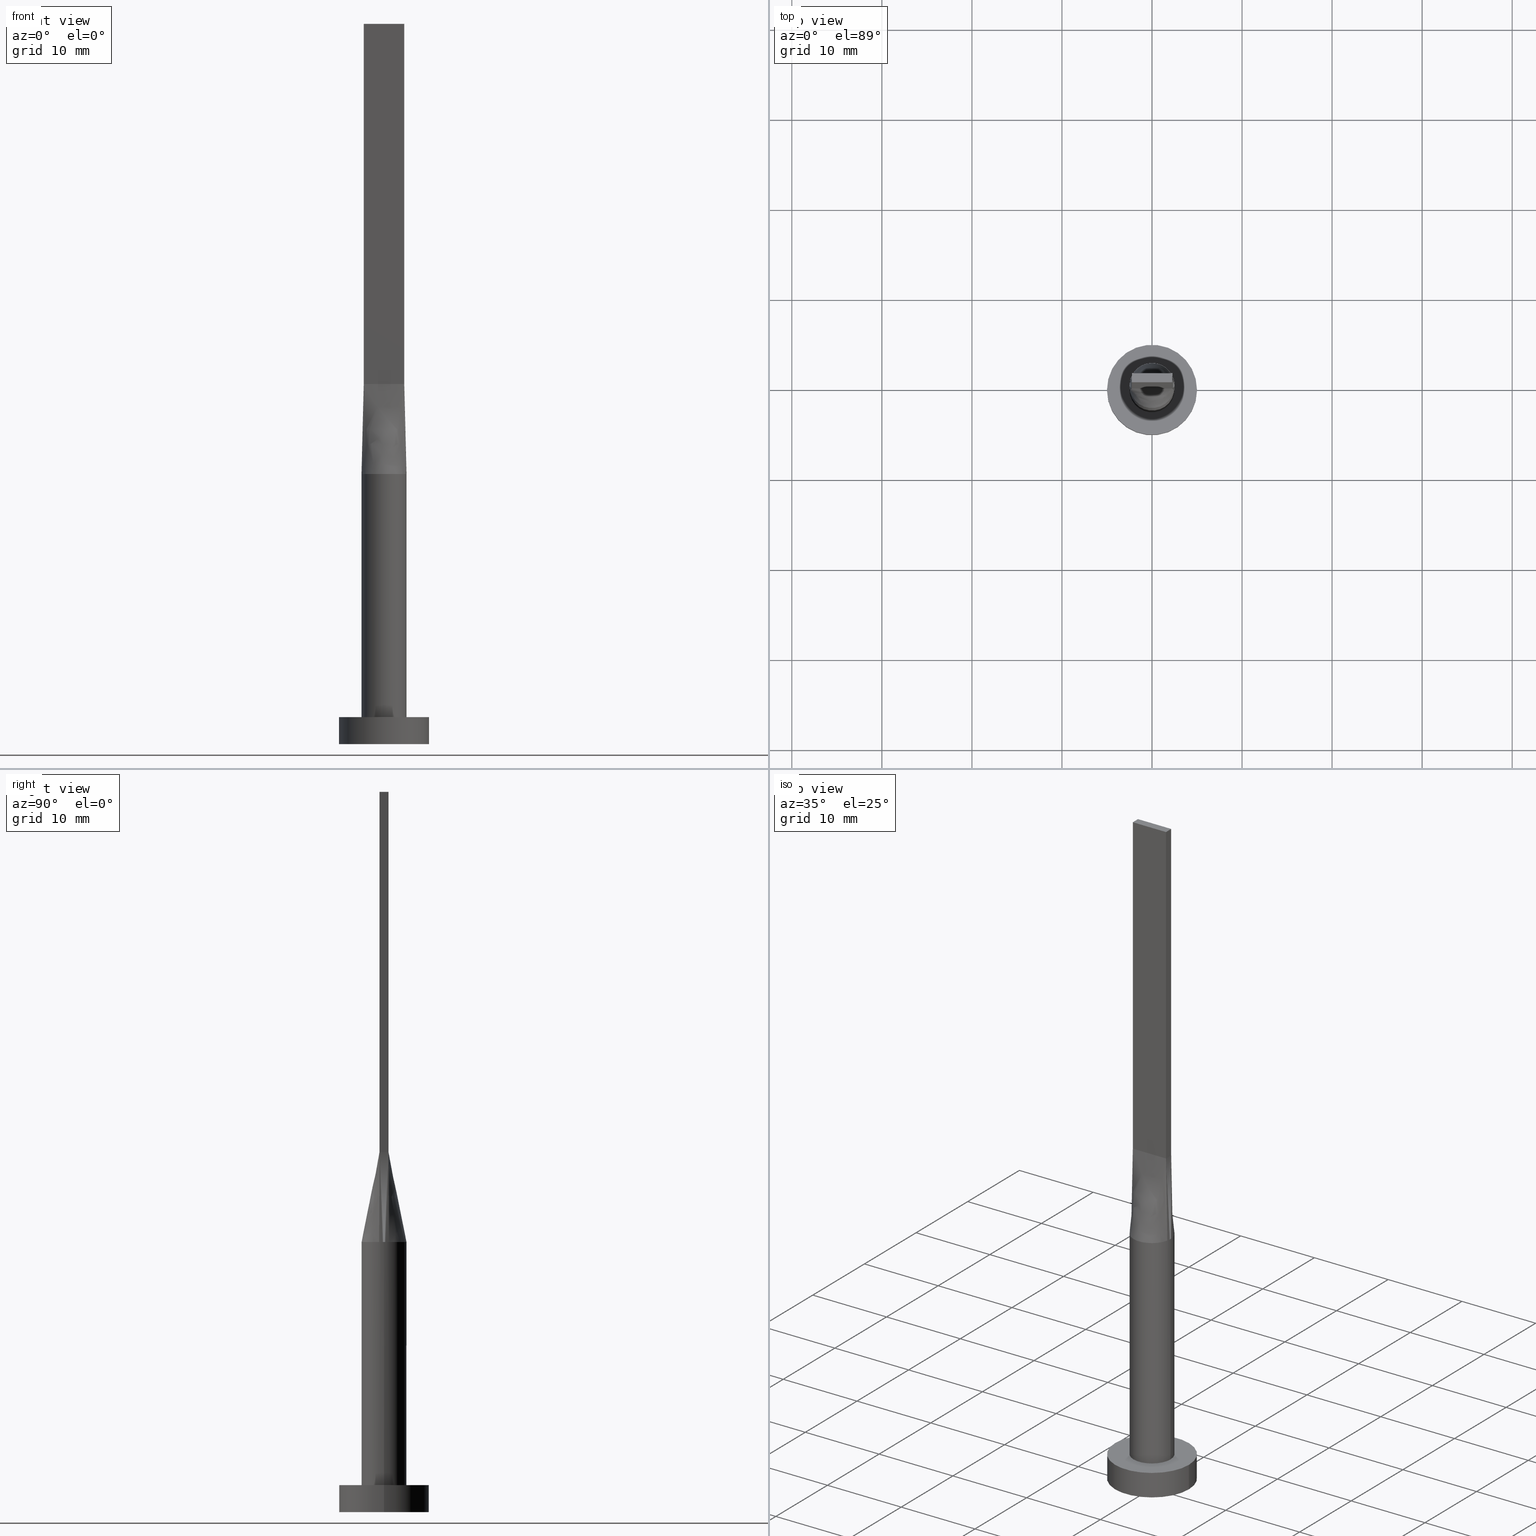
[diagram: canonical four-view strip — front | top / right | iso, engineering-drawing reading convention]
A machine part, canonical four-view strip (front | top / right | iso — engineering-drawing reading convention). The complete STEP part file that produces these views, byte-faithful:
ISO-10303-21;
HEADER;
FILE_DESCRIPTION (( 'STEP AP203' ),
    '1' );
FILE_NAME ('97d0.STEP',
    '2023-02-13T11:23:31',
    ( '' ),
    ( '' ),
    'SwSTEP 2.0',
    'SolidWorks 2019',
    '' );
FILE_SCHEMA (( 'CONFIG_CONTROL_DESIGN' ));
ENDSEC;

DATA;
#1 = LINE ( 'NONE', #450, #43 ) ;
#2 = FACE_OUTER_BOUND ( 'NONE', #85, .T. ) ;
#3 = CIRCLE ( 'NONE', #340, 2.500000000000000000 ) ;
#4 = CARTESIAN_POINT ( 'NONE',  ( -0.6674771052374470770, 2.430579781493059421, 29.99999999999998934 ) ) ;
#5 = VERTEX_POINT ( 'NONE', #221 ) ;
#6 = CARTESIAN_POINT ( 'NONE',  ( 0.000000000000000000, 0.000000000000000000, 30.00000000000000000 ) ) ;
#7 = CARTESIAN_POINT ( 'NONE',  ( 2.250000000000000000, -0.4999999999999997780, 80.00000000000000000 ) ) ;
#8 = DIRECTION ( 'NONE',  ( 1.000000000000000000, 0.000000000000000000, 0.000000000000000000 ) ) ;
#9 = EDGE_CURVE ( 'NONE', #513, #28, #87, .T. ) ;
#10 = CARTESIAN_POINT ( 'NONE',  ( 1.935644909179608186, 1.608159499248285051, 29.99999999999999645 ) ) ;
#11 = CARTESIAN_POINT ( 'NONE',  ( 2.440706242928429415, -0.5423794613208688942, 30.00000000000000000 ) ) ;
#12 = LINE ( 'NONE', #379, #454 ) ;
#13 = B_SPLINE_SURFACE_WITH_KNOTS ( 'NONE', 3, 1, ( 
 ( #267, #364 ),
 ( #280, #42 ),
 ( #459, #553 ),
 ( #53, #557 ),
 ( #10, #230 ),
 ( #374, #182 ),
 ( #236, #334 ),
 ( #335, #141 ),
 ( #225, #421 ),
 ( #48, #326 ),
 ( #516, #551 ),
 ( #414, #463 ),
 ( #189, #424 ),
 ( #93, #470 ),
 ( #180, #372 ),
 ( #137, #15 ),
 ( #418, #86 ),
 ( #550, #57 ) ),
 .UNSPECIFIED., .F., .F., .F.,
 ( 4, 2, 2, 2, 2, 2, 2, 2, 4 ),
 ( 2, 2 ),
 ( 0.000000000000000000, 0.1249999999999999722, 0.2500000000000000000, 0.3750000000000000000, 0.5000000000000001110, 0.6250000000000001110, 0.7500000000000000000, 0.8750000000000000000, 1.000000000000000000 ),
 ( 0.000000000000000000, 1.000000000000000000 ),
 .UNSPECIFIED. ) ;
#14 = CIRCLE ( 'NONE', #331, 2.500000000000000000 ) ;
#15 = CARTESIAN_POINT ( 'NONE',  ( -1.875000000000003775, 0.5000000000000002220, 39.99999999999999289 ) ) ;
#16 = PERSON ( 'NEUR�EN�', 'NEUR�EN�', 'NEUR�EN�', ('NEUR�EN�'), ('NEUR�EN�'), ('NEUR�EN�') ) ;
#17 = CARTESIAN_POINT ( 'NONE',  ( 2.479683336734391563, 0.3658555563113463638, 30.00000000000000000 ) ) ;
#18 = DIRECTION ( 'NONE',  ( 1.000000000000000000, 0.000000000000000000, -0.000000000000000000 ) ) ;
#19 = DIRECTION ( 'NONE',  ( -1.000000000000000000, -0.000000000000000000, -0.000000000000000000 ) ) ;
#20 = CARTESIAN_POINT ( 'NONE',  ( -0.9375000000000006661, -0.4999999999999995559, 39.99999999999999289 ) ) ;
#21 = CARTESIAN_POINT ( 'NONE',  ( -2.345233825229941171, -0.5211630722733197052, 35.00000000000000000 ) ) ;
#22 = EDGE_LOOP ( 'NONE', ( #403, #395, #59, #483 ) ) ;
#23 = CARTESIAN_POINT ( 'NONE',  ( 2.093723281432890548, -1.388001797188530340, 29.99999999999999645 ) ) ;
#24 = FACE_OUTER_BOUND ( 'NONE', #306, .T. ) ;
#25 = ORIENTED_EDGE ( 'NONE', *, *, #519, .F. ) ;
#26 = DIRECTION ( 'NONE',  ( -0.000000000000000000, -0.000000000000000000, -1.000000000000000000 ) ) ;
#27 = CARTESIAN_POINT ( 'NONE',  ( -2.250000000000000000, -0.4999999999999994449, 80.00000000000000000 ) ) ;
#28 = VERTEX_POINT ( 'NONE', #508 ) ;
#29 = CARTESIAN_POINT ( 'NONE',  ( 0.000000000000000000, 0.000000000000000000, 30.00000000000000000 ) ) ;
#30 = AXIS2_PLACEMENT_3D ( 'NONE', #401, #465, #35 ) ;
#31 = PLANE ( 'NONE',  #452 ) ;
#32 = ADVANCED_FACE ( 'NONE', ( #365 ), #270, .T. ) ;
#33 = ORIENTED_EDGE ( 'NONE', *, *, #170, .T. ) ;
#34 = EDGE_LOOP ( 'NONE', ( #119, #497, #151, #91 ) ) ;
#35 = DIRECTION ( 'NONE',  ( -1.000000000000000000, 0.000000000000000000, 0.000000000000000000 ) ) ;
#36 = DIRECTION ( 'NONE',  ( 7.228014483236697048E-17, 1.000000000000000000, -0.000000000000000000 ) ) ;
#37 = ADVANCED_FACE ( 'NONE', ( #265 ), #411, .F. ) ;
#38 = DIRECTION ( 'NONE',  ( 1.000000000000000000, 0.000000000000000000, 0.000000000000000000 ) ) ;
#39 = DIRECTION ( 'NONE',  ( -1.000000000000000000, -4.336808689942017736E-16, 0.000000000000000000 ) ) ;
#40 = ORIENTED_EDGE ( 'NONE', *, *, #373, .T. ) ;
#41 =( NAMED_UNIT ( * ) PLANE_ANGLE_UNIT ( ) SI_UNIT ( $, .RADIAN. ) );
#42 = CARTESIAN_POINT ( 'NONE',  ( 2.062499999999996891, 0.5000000000000002220, 39.99999999999999289 ) ) ;
#43 = VECTOR ( 'NONE', #576, 1000.000000000000000 ) ;
#44 = CIRCLE ( 'NONE', #285, 2.500000000000000000 ) ;
#45 = ADVANCED_FACE ( 'NONE', ( #409 ), #163, .F. ) ;
#46 = PERSON_AND_ORGANIZATION ( #16, #124 ) ;
#47 = APPLICATION_CONTEXT ( 'configuration controlled 3d designs of mechanical parts and assemblies' ) ;
#48 = CARTESIAN_POINT ( 'NONE',  ( -0.3342381693191151526, 2.499999999999999556, 30.00000000000000355 ) ) ;
#49 = CARTESIAN_POINT ( 'NONE',  ( -2.249999999999999556, 0.1666666666666672403, 39.99999999999999289 ) ) ;
#50 = COORDINATED_UNIVERSAL_TIME_OFFSET ( 1, 0, .AHEAD. ) ;
#51 = CARTESIAN_POINT ( 'NONE',  ( 2.499291179871646396, 0.1829277781556730154, 30.00000000000000000 ) ) ;
#52 = EDGE_CURVE ( 'NONE', #427, #5, #295, .T. ) ;
#53 = CARTESIAN_POINT ( 'NONE',  ( 2.093723281432890104, 1.388001797188529007, 29.99999999999998934 ) ) ;
#54 = ORIENTED_EDGE ( 'NONE', *, *, #532, .F. ) ;
#55 = DESIGN_CONTEXT ( 'detailed design', #47, 'design' ) ;
#56 = PERSON_AND_ORGANIZATION ( #16, #124 ) ;
#57 = CARTESIAN_POINT ( 'NONE',  ( -2.249999999999999556, 0.5000000000000002220, 40.00000000000000000 ) ) ;
#58 = CARTESIAN_POINT ( 'NONE',  ( 0.9374999999999997780, -0.4999999999999995559, 39.99999999999999289 ) ) ;
#59 = ORIENTED_EDGE ( 'NONE', *, *, #385, .F. ) ;
#60 = CARTESIAN_POINT ( 'NONE',  ( -1.935644909179609297, -1.608159499248284829, 30.00000000000000711 ) ) ;
#61 = CARTESIAN_POINT ( 'NONE',  ( 2.500000000000000000, 3.061616997868383141E-16, 3.000000000000000000 ) ) ;
#62 = EDGE_LOOP ( 'NONE', ( #287, #294 ) ) ;
#63 = PERSON_AND_ORGANIZATION_ROLE ( 'classification_officer' ) ;
#64 = VECTOR ( 'NONE', #238, 1000.000000000000000 ) ;
#65 = DIRECTION ( 'NONE',  ( 1.000000000000000000, 0.000000000000000000, 0.000000000000000000 ) ) ;
#66 = DIRECTION ( 'NONE',  ( 0.01904314058352523514, -0.004231809018561030755, 0.9998097071888962795 ) ) ;
#67 = ORIENTED_EDGE ( 'NONE', *, *, #469, .T. ) ;
#68 = CARTESIAN_POINT ( 'NONE',  ( -1.260416918790969509, -2.182794756967427752, 29.99999999999999645 ) ) ;
#69 = EDGE_LOOP ( 'NONE', ( #534, #321, #500, #344, #439 ) ) ;
#70 = CARTESIAN_POINT ( 'NONE',  ( 0.3749999999999998890, -0.4999999999999995559, 39.99999999999999289 ) ) ;
#71 = ADVANCED_FACE ( 'NONE', ( #546 ), #316, .F. ) ;
#72 = ORIENTED_EDGE ( 'NONE', *, *, #526, .F. ) ;
#73 = VECTOR ( 'NONE', #482, 1000.000000000000000 ) ;
#74 = DATE_TIME_ROLE ( 'creation_date' ) ;
#75 = LINE ( 'NONE', #441, #224 ) ;
#76 = VERTEX_POINT ( 'NONE', #168 ) ;
#77 = DATE_AND_TIME ( #123, #341 ) ;
#78 = CARTESIAN_POINT ( 'NONE',  ( 1.935644909179608186, 1.608159499248285051, 29.99999999999999645 ) ) ;
#79 = DIRECTION ( 'NONE',  ( -0.000000000000000000, -0.000000000000000000, -1.000000000000000000 ) ) ;
#80 = CARTESIAN_POINT ( 'NONE',  ( 0.000000000000000000, 0.000000000000000000, 30.00000000000000000 ) ) ;
#81 = DIRECTION ( 'NONE',  ( 4.336808689942017736E-16, -1.000000000000000000, 0.000000000000000000 ) ) ;
#82 = ADVANCED_FACE ( 'NONE', ( #503, #2 ), #172, .T. ) ;
#83 = DIRECTION ( 'NONE',  ( -1.000000000000000000, 0.000000000000000000, 0.000000000000000000 ) ) ;
#84 = CARTESIAN_POINT ( 'NONE',  ( -1.935644909179609297, 1.608159499248285718, 30.00000000000001066 ) ) ;
#85 = EDGE_LOOP ( 'NONE', ( #203, #162 ) ) ;
#86 = CARTESIAN_POINT ( 'NONE',  ( -2.062500000000001776, 0.5000000000000002220, 39.99999999999999289 ) ) ;
#87 = LINE ( 'NONE', #323, #222 ) ;
#88 = DIRECTION ( 'NONE',  ( -0.000000000000000000, -0.000000000000000000, -1.000000000000000000 ) ) ;
#89 = CIRCLE ( 'NONE', #432, 5.000000000000000000 ) ;
#90 = CARTESIAN_POINT ( 'NONE',  ( 2.249999999999999556, 0.5000000000000002220, 80.00000000000000000 ) ) ;
#91 = ORIENTED_EDGE ( 'NONE', *, *, #363, .T. ) ;
#92 = DIRECTION ( 'NONE',  ( -0.000000000000000000, -0.000000000000000000, -1.000000000000000000 ) ) ;
#93 = CARTESIAN_POINT ( 'NONE',  ( -1.935644909179609297, 1.608159499248285718, 30.00000000000001066 ) ) ;
#94 = CARTESIAN_POINT ( 'NONE',  ( -2.479683336734391563, 0.3658555563113465858, 30.00000000000000000 ) ) ;
#95 = PERSON_AND_ORGANIZATION ( #16, #124 ) ;
#96 = CARTESIAN_POINT ( 'NONE',  ( 2.250000000000000000, -0.4999999999999997780, 40.00000000000000000 ) ) ;
#97 = FACE_OUTER_BOUND ( 'NONE', #34, .T. ) ;
#98 = VECTOR ( 'NONE', #356, 1000.000000000000000 ) ;
#99 = CARTESIAN_POINT ( 'NONE',  ( -2.440688158044365785, -0.5423755258804862089, 30.00000000000000000 ) ) ;
#100 = ORIENTED_EDGE ( 'NONE', *, *, #526, .T. ) ;
#101 = CARTESIAN_POINT ( 'NONE',  ( 0.6674771052374466329, -2.430579781493059865, 29.99999999999999289 ) ) ;
#102 = EDGE_CURVE ( 'NONE', #564, #260, #336, .T. ) ;
#103 = CARTESIAN_POINT ( 'NONE',  ( 2.345233825229940727, -0.5211630722733201493, 35.00000000000000000 ) ) ;
#104 = CARTESIAN_POINT ( 'NONE',  ( -1.500000000000000444, -0.4999999999999995559, 39.99999999999999289 ) ) ;
#105 = FACE_OUTER_BOUND ( 'NONE', #541, .T. ) ;
#106 = CC_DESIGN_PERSON_AND_ORGANIZATION_ASSIGNMENT ( #95, #63, ( #299 ) ) ;
#107 = ORIENTED_EDGE ( 'NONE', *, *, #250, .F. ) ;
#108 = APPROVAL_ROLE ( '' ) ;
#109 = DIRECTION ( 'NONE',  ( -4.336808689942019708E-16, -1.000000000000000000, 0.000000000000000000 ) ) ;
#110 = CARTESIAN_POINT ( 'NONE',  ( 2.249999999999999556, 0.5000000000000002220, 40.00000000000000000 ) ) ;
#111 = VERTEX_POINT ( 'NONE', #99 ) ;
#112 = CC_DESIGN_APPROVAL ( #232, ( #361 ) ) ;
#113 = DIRECTION ( 'NONE',  ( -0.000000000000000000, -0.000000000000000000, -1.000000000000000000 ) ) ;
#114 = DIRECTION ( 'NONE',  ( 0.000000000000000000, -1.000000000000000000, 0.000000000000000000 ) ) ;
#115 = VERTEX_POINT ( 'NONE', #7 ) ;
#116 = EDGE_CURVE ( 'NONE', #505, #446, #243, .T. ) ;
#117 = CARTESIAN_POINT ( 'NONE',  ( 1.312499999999999778, -0.4999999999999996669, 39.99999999999999289 ) ) ;
#118 = CARTESIAN_POINT ( 'NONE',  ( 2.345233825229940283, 0.5211630722733202603, 35.00000000000000000 ) ) ;
#119 = ORIENTED_EDGE ( 'NONE', *, *, #126, .T. ) ;
#120 = PERSON_AND_ORGANIZATION ( #16, #124 ) ;
#121 = ORIENTED_EDGE ( 'NONE', *, *, #309, .T. ) ;
#122 = AXIS2_PLACEMENT_3D ( 'NONE', #297, #398, #493 ) ;
#123 = CALENDAR_DATE ( 2023, 13, 2 ) ;
#124 = ORGANIZATION ( 'NEUR�EN�', 'NEUR�EN�', '' ) ;
#125 = CARTESIAN_POINT ( 'NONE',  ( 2.440676307083422980, 0.5423728264510006003, 30.00000000000000000 ) ) ;
#126 = EDGE_CURVE ( 'NONE', #136, #513, #190, .T. ) ;
#127 = DIRECTION ( 'NONE',  ( 1.000000000000000000, 0.000000000000000000, 0.000000000000000000 ) ) ;
#128 = CARTESIAN_POINT ( 'NONE',  ( -1.519400572660313253, 2.006070808634367264, 30.00000000000001421 ) ) ;
#129 = ADVANCED_FACE ( 'NONE', ( #467 ), #210, .T. ) ;
#130 = ORIENTED_EDGE ( 'NONE', *, *, #469, .F. ) ;
#131 = AXIS2_PLACEMENT_3D ( 'NONE', #220, #36, #176 ) ;
#132 = DIRECTION ( 'NONE',  ( -0.000000000000000000, -0.000000000000000000, -1.000000000000000000 ) ) ;
#133 = VECTOR ( 'NONE', #358, 1000.000000000000000 ) ;
#134 = CIRCLE ( 'NONE', #518, 5.000000000000000000 ) ;
#135 = EDGE_LOOP ( 'NONE', ( #33, #130, #391, #159 ) ) ;
#136 = VERTEX_POINT ( 'NONE', #573 ) ;
#137 = CARTESIAN_POINT ( 'NONE',  ( -2.323660390030918510, 0.9543733860570832173, 30.00000000000000000 ) ) ;
#138 = CARTESIAN_POINT ( 'NONE',  ( 2.440467650459881899, -0.5423261445466410757, 30.00000000000000000 ) ) ;
#139 = VECTOR ( 'NONE', #109, 1000.000000000000000 ) ;
#140 = CARTESIAN_POINT ( 'NONE',  ( -2.499291179871646840, -0.1829277781556729043, 30.00000000000000000 ) ) ;
#141 = CARTESIAN_POINT ( 'NONE',  ( 0.3749999999999862332, 0.5000000000000002220, 39.99999999999999289 ) ) ;
#142 = CARTESIAN_POINT ( 'NONE',  ( -2.250000000000000000, -0.3333333333333325932, 39.99999999999999289 ) ) ;
#143 = CARTESIAN_POINT ( 'NONE',  ( 2.249999999999999556, 0.1666666666666664354, 39.99999999999999289 ) ) ;
#144 = COORDINATED_UNIVERSAL_TIME_OFFSET ( 1, 0, .AHEAD. ) ;
#145 = CARTESIAN_POINT ( 'NONE',  ( 0.000000000000000000, 0.000000000000000000, 80.00000000000000000 ) ) ;
#146 = DIRECTION ( 'NONE',  ( 1.000000000000000000, 0.000000000000000000, -0.000000000000000000 ) ) ;
#147 = CIRCLE ( 'NONE', #122, 5.000000000000000000 ) ;
#148 = LOCAL_TIME ( 12, 23, 31.00000000000000000, #435 ) ;
#149 = CARTESIAN_POINT ( 'NONE',  ( -2.062500000000000000, -0.4999999999999995559, 40.00000000000000000 ) ) ;
#150 = CARTESIAN_POINT ( 'NONE',  ( 0.000000000000000000, 0.000000000000000000, 0.000000000000000000 ) ) ;
#151 = ORIENTED_EDGE ( 'NONE', *, *, #289, .T. ) ;
#152 = CARTESIAN_POINT ( 'NONE',  ( 1.875000000000000000, -0.4999999999999997780, 39.99999999999999289 ) ) ;
#153 = LINE ( 'NONE', #487, #559 ) ;
#154 = VERTEX_POINT ( 'NONE', #61 ) ;
#155 = CARTESIAN_POINT ( 'NONE',  ( 0.000000000000000000, 0.000000000000000000, 0.000000000000000000 ) ) ;
#156 = ORIENTED_EDGE ( 'NONE', *, *, #571, .F. ) ;
#157 = CARTESIAN_POINT ( 'NONE',  ( 1.519400572660313031, -2.006070808634367264, 30.00000000000000711 ) ) ;
#158 = DIRECTION ( 'NONE',  ( 1.000000000000000000, 0.000000000000000000, 0.000000000000000000 ) ) ;
#159 = ORIENTED_EDGE ( 'NONE', *, *, #366, .T. ) ;
#160 = CARTESIAN_POINT ( 'NONE',  ( 2.323660390030917178, -0.9543733860570838834, 30.00000000000001066 ) ) ;
#161 = LINE ( 'NONE', #206, #283 ) ;
#162 = ORIENTED_EDGE ( 'NONE', *, *, #239, .T. ) ;
#163 = PLANE ( 'NONE',  #131 ) ;
#164 = VECTOR ( 'NONE', #455, 1000.000000000000000 ) ;
#165 = LINE ( 'NONE', #575, #375 ) ;
#166 = CC_DESIGN_DATE_AND_TIME_ASSIGNMENT ( #480, #345, ( #299 ) ) ;
#167 = CARTESIAN_POINT ( 'NONE',  ( -2.093723281432891437, 1.388001797188529451, 30.00000000000000000 ) ) ;
#168 = CARTESIAN_POINT ( 'NONE',  ( -5.000000000000000000, 0.000000000000000000, 0.000000000000000000 ) ) ;
#169 = FACE_OUTER_BOUND ( 'NONE', #378, .T. ) ;
#170 = EDGE_CURVE ( 'NONE', #260, #200, #161, .T. ) ;
#171 = CARTESIAN_POINT ( 'NONE',  ( 0.000000000000000000, 0.000000000000000000, 0.000000000000000000 ) ) ;
#172 = PLANE ( 'NONE',  #429 ) ;
#173 = AXIS2_PLACEMENT_3D ( 'NONE', #415, #39, #81 ) ;
#174 = EDGE_CURVE ( 'NONE', #446, #200, #394, .T. ) ;
#175 = CIRCLE ( 'NONE', #396, 2.500000000000000000 ) ;
#176 = DIRECTION ( 'NONE',  ( -1.000000000000000000, 7.228014483236697048E-17, 0.000000000000000000 ) ) ;
#177 = DATE_AND_TIME ( #369, #195 ) ;
#178 = DIRECTION ( 'NONE',  ( 0.000000000000000000, 0.000000000000000000, 1.000000000000000000 ) ) ;
#179 = PERSON_AND_ORGANIZATION_ROLE ( 'creator' ) ;
#180 = CARTESIAN_POINT ( 'NONE',  ( -2.093723281432891437, 1.388001797188529451, 30.00000000000000000 ) ) ;
#181 = DIRECTION ( 'NONE',  ( -0.01904314058352514841, 0.004231809018561172135, 0.9998097071888962795 ) ) ;
#182 = CARTESIAN_POINT ( 'NONE',  ( 0.9374999999999878986, 0.5000000000000002220, 39.99999999999999289 ) ) ;
#183 = ADVANCED_FACE ( 'NONE', ( #293 ), #31, .F. ) ;
#184 = AXIS2_PLACEMENT_3D ( 'NONE', #145, #440, #18 ) ;
#185 = ADVANCED_FACE ( 'NONE', ( #105 ), #522, .T. ) ;
#186 = AXIS2_PLACEMENT_3D ( 'NONE', #223, #578, #8 ) ;
#187 = CARTESIAN_POINT ( 'NONE',  ( -5.000000000000000000, 0.000000000000000000, 3.000000000000000000 ) ) ;
#188 = PRODUCT_DEFINITION_SHAPE ( 'NONE', 'NONE',  #506 ) ;
#189 = CARTESIAN_POINT ( 'NONE',  ( -1.519400572660313253, 2.006070808634367264, 30.00000000000001421 ) ) ;
#190 = LINE ( 'NONE', #90, #545 ) ;
#191 = ORIENTED_EDGE ( 'NONE', *, *, #309, .F. ) ;
#192 = FACE_OUTER_BOUND ( 'NONE', #22, .T. ) ;
#193 = CARTESIAN_POINT ( 'NONE',  ( 5.000000000000000000, 6.123233995736766282E-16, 0.000000000000000000 ) ) ;
#194 = ORIENTED_EDGE ( 'NONE', *, *, #354, .T. ) ;
#195 = LOCAL_TIME ( 12, 23, 31.00000000000000000, #264 ) ;
#196 = CARTESIAN_POINT ( 'NONE',  ( -0.7500000000000006661, -0.4999999999999995559, 39.99999999999999289 ) ) ;
#197 = LINE ( 'NONE', #387, #204 ) ;
#198 = ORIENTED_EDGE ( 'NONE', *, *, #458, .F. ) ;
#199 = CARTESIAN_POINT ( 'NONE',  ( -2.440467650459882343, -0.5423261445466400765, 30.00000000000000000 ) ) ;
#200 = VERTEX_POINT ( 'NONE', #110 ) ;
#201 = CARTESIAN_POINT ( 'NONE',  ( 0.3342381693191144310, -2.500000000000000444, 30.00000000000000355 ) ) ;
#202 = VECTOR ( 'NONE', #181, 1000.000000000000000 ) ;
#203 = ORIENTED_EDGE ( 'NONE', *, *, #52, .T. ) ;
#204 = VECTOR ( 'NONE', #563, 1000.000000000000000 ) ;
#205 = FACE_OUTER_BOUND ( 'NONE', #442, .T. ) ;
#206 = CARTESIAN_POINT ( 'NONE',  ( 2.249999999999999556, 0.5000000000000002220, 40.00000000000000000 ) ) ;
#207 = ORIENTED_EDGE ( 'NONE', *, *, #532, .T. ) ;
#208 = EDGE_CURVE ( 'NONE', #154, #263, #3, .T. ) ;
#209 =( NAMED_UNIT ( * ) SI_UNIT ( $, .STERADIAN. ) SOLID_ANGLE_UNIT ( ) );
#210 = B_SPLINE_SURFACE_WITH_KNOTS ( 'NONE', 3, 1, ( 
 ( #475, #380 ),
 ( #94, #464 ),
 ( #376, #49 ),
 ( #140, #234 ),
 ( #554, #142 ),
 ( #426, #252 ) ),
 .UNSPECIFIED., .F., .F., .F.,
 ( 4, 2, 4 ),
 ( 2, 2 ),
 ( 0.000000000000000000, 0.5000000000000000000, 1.000000000000000000 ),
 ( 0.000000000000000000, 1.000000000000000000 ),
 .UNSPECIFIED. ) ;
#211 = ORIENTED_EDGE ( 'NONE', *, *, #422, .T. ) ;
#212 = CC_DESIGN_PERSON_AND_ORGANIZATION_ASSIGNMENT ( #56, #333, ( #361 ) ) ;
#213 = DIRECTION ( 'NONE',  ( 0.000000000000000000, 0.000000000000000000, 1.000000000000000000 ) ) ;
#214 = CARTESIAN_POINT ( 'NONE',  ( 0.3342381693191150416, 2.499999999999999556, 30.00000000000000355 ) ) ;
#215 = CLOSED_SHELL ( 'NONE', ( #544, #32, #496, #82, #183, #185, #509, #460, #129, #407, #324, #71, #45, #37, #474 ) ) ;
#216 = DIRECTION ( 'NONE',  ( 1.000000000000000000, -4.336808689942020201E-16, 0.000000000000000000 ) ) ;
#217 = DIRECTION ( 'NONE',  ( 0.000000000000000000, 0.000000000000000000, 1.000000000000000000 ) ) ;
#218 = CARTESIAN_POINT ( 'NONE',  ( -2.396350003401058082, 0.7408555563113466969, 30.00000000000000000 ) ) ;
#219 = EDGE_CURVE ( 'NONE', #357, #388, #486, .T. ) ;
#220 = CARTESIAN_POINT ( 'NONE',  ( -2.250000000000000000, -0.4999999999999994449, 80.00000000000000000 ) ) ;
#221 = CARTESIAN_POINT ( 'NONE',  ( 5.000000000000000000, 6.123233995736766282E-16, 3.000000000000000000 ) ) ;
#222 = VECTOR ( 'NONE', #227, 1000.000000000000000 ) ;
#223 = CARTESIAN_POINT ( 'NONE',  ( 0.000000000000000000, 0.000000000000000000, 0.000000000000000000 ) ) ;
#224 = VECTOR ( 'NONE', #19, 1000.000000000000000 ) ;
#225 = CARTESIAN_POINT ( 'NONE',  ( 0.3342381693191150416, 2.499999999999999556, 30.00000000000000355 ) ) ;
#226 = LOCAL_TIME ( 12, 23, 31.00000000000000000, #144 ) ;
#227 = DIRECTION ( 'NONE',  ( -0.000000000000000000, -0.000000000000000000, -1.000000000000000000 ) ) ;
#228 = APPROVAL_DATE_TIME ( #177, #232 ) ;
#229 = EDGE_CURVE ( 'NONE', #531, #111, #305, .T. ) ;
#230 = CARTESIAN_POINT ( 'NONE',  ( 1.312499999999990230, 0.5000000000000002220, 39.99999999999999289 ) ) ;
#231 = PERSON_AND_ORGANIZATION ( #16, #124 ) ;
#232 = APPROVAL ( #449, 'NEUR�EN�' ) ;
#233 = CARTESIAN_POINT ( 'NONE',  ( 2.440467650459881899, 0.5423261445466404096, 30.00000000000000000 ) ) ;
#234 = CARTESIAN_POINT ( 'NONE',  ( -2.249999999999999556, -0.1666666666666659358, 39.99999999999999289 ) ) ;
#235 = SHAPE_DEFINITION_REPRESENTATION ( #188, #255 ) ;
#236 = CARTESIAN_POINT ( 'NONE',  ( 1.260416918790968843, 2.182794756967427752, 29.99999999999999645 ) ) ;
#237 = ORIENTED_EDGE ( 'NONE', *, *, #537, .T. ) ;
#238 = DIRECTION ( 'NONE',  ( -0.000000000000000000, -0.000000000000000000, -1.000000000000000000 ) ) ;
#239 = EDGE_CURVE ( 'NONE', #5, #427, #147, .T. ) ;
#240 = PRODUCT ( '97d0', '97d0', '', ( #330 ) ) ;
#241 = CARTESIAN_POINT ( 'NONE',  ( 2.250000000000000000, -0.4999999999999997780, 40.00000000000000000 ) ) ;
#242 = EDGE_LOOP ( 'NONE', ( #353, #543, #246, #268 ) ) ;
#243 = CIRCLE ( 'NONE', #308, 2.500000000000000000 ) ;
#244 = CARTESIAN_POINT ( 'NONE',  ( -2.093723281432891881, -1.388001797188529007, 30.00000000000000000 ) ) ;
#245 = DIRECTION ( 'NONE',  ( 0.000000000000000000, 0.000000000000000000, 1.000000000000000000 ) ) ;
#246 = ORIENTED_EDGE ( 'NONE', *, *, #519, .T. ) ;
#247 = CC_DESIGN_APPROVAL ( #300, ( #299 ) ) ;
#248 = LINE ( 'NONE', #437, #473 ) ;
#249 = ORIENTED_EDGE ( 'NONE', *, *, #552, .F. ) ;
#250 = EDGE_CURVE ( 'NONE', #200, #28, #75, .T. ) ;
#251 = CARTESIAN_POINT ( 'NONE',  ( -0.1874999999999999445, -0.4999999999999995559, 39.99999999999999289 ) ) ;
#252 = CARTESIAN_POINT ( 'NONE',  ( -2.250000000000000000, -0.4999999999999993339, 40.00000000000000000 ) ) ;
#253 = VERTEX_POINT ( 'NONE', #193 ) ;
#254 = DIRECTION ( 'NONE',  ( 0.000000000000000000, 0.000000000000000000, 1.000000000000000000 ) ) ;
#255 = ADVANCED_BREP_SHAPE_REPRESENTATION ( '97d0', ( #417, #186 ), #383 ) ;
#256 = ORIENTED_EDGE ( 'NONE', *, *, #484, .F. ) ;
#257 = VECTOR ( 'NONE', #92, 1000.000000000000000 ) ;
#258 = CARTESIAN_POINT ( 'NONE',  ( 5.000000000000000000, 6.123233995736766282E-16, 3.000000000000000000 ) ) ;
#259 = CC_DESIGN_PERSON_AND_ORGANIZATION_ASSIGNMENT ( #120, #307, ( #506 ) ) ;
#260 = VERTEX_POINT ( 'NONE', #384 ) ;
#261 = DATE_AND_TIME ( #549, #462 ) ;
#262 = CARTESIAN_POINT ( 'NONE',  ( 1.519400572660313031, 2.006070808634367708, 30.00000000000000000 ) ) ;
#263 = VERTEX_POINT ( 'NONE', #433 ) ;
#264 = COORDINATED_UNIVERSAL_TIME_OFFSET ( 1, 0, .AHEAD. ) ;
#265 = FACE_OUTER_BOUND ( 'NONE', #135, .T. ) ;
#266 = ORIENTED_EDGE ( 'NONE', *, *, #458, .T. ) ;
#267 = CARTESIAN_POINT ( 'NONE',  ( 2.440467650459881899, 0.5423261445466406316, 30.00000000000000000 ) ) ;
#268 = ORIENTED_EDGE ( 'NONE', *, *, #422, .F. ) ;
#269 = CARTESIAN_POINT ( 'NONE',  ( 2.479683336734391563, -0.3658555563113470299, 30.00000000000000000 ) ) ;
#270 = CYLINDRICAL_SURFACE ( 'NONE', #392, 5.000000000000000000 ) ;
#271 = APPROVAL_ROLE ( '' ) ;
#272 = CARTESIAN_POINT ( 'NONE',  ( -5.000000000000000000, 0.000000000000000000, 3.000000000000000000 ) ) ;
#273 = B_SPLINE_CURVE_WITH_KNOTS ( 'NONE', 3,
 ( #125, #322, #362, #315, #78, #262, #507, #579, #214, #405, #4, #320, #128, #84, #167, #502, #218, #408 ),
 .UNSPECIFIED., .F., .F.,
 ( 4, 2, 2, 2, 2, 2, 2, 2, 4 ),
 ( 0.000000000000000000, 0.1249999999999999722, 0.2500000000000000000, 0.3750000000000000000, 0.5000000000000001110, 0.6250000000000001110, 0.7500000000000000000, 0.8750000000000000000, 1.000000000000000000 ),
 .UNSPECIFIED. ) ;
#274 = CC_DESIGN_SECURITY_CLASSIFICATION ( #299, ( #361 ) ) ;
#275 = DIRECTION ( 'NONE',  ( -1.000000000000000000, 0.000000000000000000, 0.000000000000000000 ) ) ;
#276 = CC_DESIGN_PERSON_AND_ORGANIZATION_ASSIGNMENT ( #404, #542, ( #240 ) ) ;
#277 = APPROVAL_STATUS ( 'not_yet_approved' ) ;
#278 = CARTESIAN_POINT ( 'NONE',  ( 2.499291179871646396, -0.1829277781556736815, 30.00000000000000000 ) ) ;
#279 = PERSON_AND_ORGANIZATION ( #16, #124 ) ;
#280 = CARTESIAN_POINT ( 'NONE',  ( 2.396350003401058526, 0.7408555563113465858, 30.00000000000000355 ) ) ;
#281 = DIRECTION ( 'NONE',  ( 0.000000000000000000, 0.000000000000000000, 1.000000000000000000 ) ) ;
#282 = CALENDAR_DATE ( 2023, 13, 2 ) ;
#283 = VECTOR ( 'NONE', #438, 1000.000000000000000 ) ;
#284 = PLANE ( 'NONE',  #184 ) ;
#285 = AXIS2_PLACEMENT_3D ( 'NONE', #80, #213, #317 ) ;
#286 = DIRECTION ( 'NONE',  ( 1.000000000000000000, 0.000000000000000000, 0.000000000000000000 ) ) ;
#287 = ORIENTED_EDGE ( 'NONE', *, *, #537, .F. ) ;
#288 = CARTESIAN_POINT ( 'NONE',  ( -2.249999999999999556, 0.5000000000000002220, 80.00000000000000000 ) ) ;
#289 = EDGE_CURVE ( 'NONE', #351, #115, #197, .T. ) ;
#290 = ORIENTED_EDGE ( 'NONE', *, *, #52, .F. ) ;
#291 = CALENDAR_DATE ( 2023, 13, 2 ) ;
#292 = LINE ( 'NONE', #288, #139 ) ;
#293 = FACE_OUTER_BOUND ( 'NONE', #577, .T. ) ;
#294 = ORIENTED_EDGE ( 'NONE', *, *, #208, .F. ) ;
#295 = CIRCLE ( 'NONE', #329, 5.000000000000000000 ) ;
#296 = CARTESIAN_POINT ( 'NONE',  ( 1.260416918790968399, -2.182794756967428640, 29.99999999999999645 ) ) ;
#297 = CARTESIAN_POINT ( 'NONE',  ( 0.000000000000000000, 0.000000000000000000, 3.000000000000000000 ) ) ;
#298 = ORIENTED_EDGE ( 'NONE', *, *, #116, .F. ) ;
#299 = SECURITY_CLASSIFICATION ( '', '', #556 ) ;
#300 = APPROVAL ( #468, 'NEUR�EN�' ) ;
#301 = CARTESIAN_POINT ( 'NONE',  ( -1.875000000000000444, -0.4999999999999995559, 40.00000000000000000 ) ) ;
#302 = DIRECTION ( 'NONE',  ( 0.000000000000000000, -0.000000000000000000, -1.000000000000000000 ) ) ;
#303 = ORIENTED_EDGE ( 'NONE', *, *, #208, .T. ) ;
#304 = DIRECTION ( 'NONE',  ( 0.000000000000000000, 0.000000000000000000, 1.000000000000000000 ) ) ;
#305 = LINE ( 'NONE', #21, #73 ) ;
#306 = EDGE_LOOP ( 'NONE', ( #510, #523, #490, #67 ) ) ;
#307 = PERSON_AND_ORGANIZATION_ROLE ( 'creator' ) ;
#308 = AXIS2_PLACEMENT_3D ( 'NONE', #419, #328, #286 ) ;
#309 = EDGE_CURVE ( 'NONE', #357, #28, #153, .T. ) ;
#310 = DIRECTION ( 'NONE',  ( 1.000000000000000000, 0.000000000000000000, 0.000000000000000000 ) ) ;
#311 = ORIENTED_EDGE ( 'NONE', *, *, #568, .F. ) ;
#312 = AXIS2_PLACEMENT_3D ( 'NONE', #350, #114, #302 ) ;
#313 = CIRCLE ( 'NONE', #547, 2.500000000000000000 ) ;
#314 = LINE ( 'NONE', #258, #257 ) ;
#315 = CARTESIAN_POINT ( 'NONE',  ( 2.093723281432890104, 1.388001797188529007, 29.99999999999998934 ) ) ;
#316 = PLANE ( 'NONE',  #471 ) ;
#317 = DIRECTION ( 'NONE',  ( 1.000000000000000000, -4.440892098500626162E-15, 0.000000000000000000 ) ) ;
#318 = CARTESIAN_POINT ( 'NONE',  ( -2.249999999999999556, 0.5000000000000002220, 40.00000000000000000 ) ) ;
#319 = DIRECTION ( 'NONE',  ( 4.336808689942020201E-16, 1.000000000000000000, 0.000000000000000000 ) ) ;
#320 = CARTESIAN_POINT ( 'NONE',  ( -1.260416918790968843, 2.182794756967428196, 29.99999999999999289 ) ) ;
#321 = ORIENTED_EDGE ( 'NONE', *, *, #116, .T. ) ;
#322 = CARTESIAN_POINT ( 'NONE',  ( 2.396350003401058526, 0.7408555563113465858, 30.00000000000000355 ) ) ;
#323 = CARTESIAN_POINT ( 'NONE',  ( -2.249999999999999556, 0.5000000000000002220, 80.00000000000000000 ) ) ;
#324 = ADVANCED_FACE ( 'NONE', ( #24 ), #566, .F. ) ;
#325 =( LENGTH_UNIT ( ) NAMED_UNIT ( * ) SI_UNIT ( .MILLI., .METRE. ) );
#326 = CARTESIAN_POINT ( 'NONE',  ( -0.1875000000000140443, 0.5000000000000002220, 39.99999999999999289 ) ) ;
#327 = CC_DESIGN_PERSON_AND_ORGANIZATION_ASSIGNMENT ( #416, #179, ( #361 ) ) ;
#328 = DIRECTION ( 'NONE',  ( 0.000000000000000000, 0.000000000000000000, 1.000000000000000000 ) ) ;
#329 = AXIS2_PLACEMENT_3D ( 'NONE', #368, #359, #127 ) ;
#330 = MECHANICAL_CONTEXT ( 'NONE', #515, 'mechanical' ) ;
#331 = AXIS2_PLACEMENT_3D ( 'NONE', #6, #178, #377 ) ;
#332 = CARTESIAN_POINT ( 'NONE',  ( 2.440676307083422980, 0.5423728264510006003, 30.00000000000000000 ) ) ;
#333 = PERSON_AND_ORGANIZATION_ROLE ( 'design_supplier' ) ;
#334 = CARTESIAN_POINT ( 'NONE',  ( 0.7499999999999872324, 0.5000000000000002220, 39.99999999999999289 ) ) ;
#335 = CARTESIAN_POINT ( 'NONE',  ( 0.6674771052374470770, 2.430579781493058977, 29.99999999999998224 ) ) ;
#336 = LINE ( 'NONE', #103, #202 ) ;
#337 = APPROVAL_DATE_TIME ( #428, #300 ) ;
#338 = AXIS2_PLACEMENT_3D ( 'NONE', #343, #390, #535 ) ;
#339 = CARTESIAN_POINT ( 'NONE',  ( 2.249999999999999556, 0.3333333333333332593, 39.99999999999999289 ) ) ;
#340 = AXIS2_PLACEMENT_3D ( 'NONE', #347, #444, #158 ) ;
#341 = LOCAL_TIME ( 12, 23, 31.00000000000000000, #461 ) ;
#342 = CARTESIAN_POINT ( 'NONE',  ( -2.323660390030918066, -0.9543733860570832173, 30.00000000000000711 ) ) ;
#343 = CARTESIAN_POINT ( 'NONE',  ( 0.000000000000000000, 0.000000000000000000, 30.00000000000000000 ) ) ;
#344 = ORIENTED_EDGE ( 'NONE', *, *, #170, .F. ) ;
#345 = DATE_TIME_ROLE ( 'classification_date' ) ;
#346 = CARTESIAN_POINT ( 'NONE',  ( 2.396350003401058082, -0.7408555563113468079, 30.00000000000000000 ) ) ;
#347 = CARTESIAN_POINT ( 'NONE',  ( 0.000000000000000000, 0.000000000000000000, 3.000000000000000000 ) ) ;
#348 = ORIENTED_EDGE ( 'NONE', *, *, #436, .F. ) ;
#349 = CARTESIAN_POINT ( 'NONE',  ( 0.000000000000000000, 0.000000000000000000, 3.000000000000000000 ) ) ;
#350 = CARTESIAN_POINT ( 'NONE',  ( 2.249999999999999556, 0.5000000000000002220, 80.00000000000000000 ) ) ;
#351 = VERTEX_POINT ( 'NONE', #27 ) ;
#352 = CARTESIAN_POINT ( 'NONE',  ( 1.935644909179608852, -1.608159499248284829, 30.00000000000000711 ) ) ;
#353 = ORIENTED_EDGE ( 'NONE', *, *, #239, .F. ) ;
#354 = EDGE_CURVE ( 'NONE', #28, #531, #410, .T. ) ;
#355 = DIRECTION ( 'NONE',  ( -0.000000000000000000, -0.000000000000000000, -1.000000000000000000 ) ) ;
#356 = DIRECTION ( 'NONE',  ( -0.01904314058352519351, -0.004231809018561117491, 0.9998097071888962795 ) ) ;
#357 = VERTEX_POINT ( 'NONE', #457 ) ;
#358 = DIRECTION ( 'NONE',  ( -4.336808689942019708E-16, -1.000000000000000000, 0.000000000000000000 ) ) ;
#359 = DIRECTION ( 'NONE',  ( 0.000000000000000000, 0.000000000000000000, 1.000000000000000000 ) ) ;
#360 = AXIS2_PLACEMENT_3D ( 'NONE', #525, #530, #310 ) ;
#361 = PRODUCT_DEFINITION_FORMATION_WITH_SPECIFIED_SOURCE ( 'LIBOVOLN�', '', #240, .NOT_KNOWN. ) ;
#362 = CARTESIAN_POINT ( 'NONE',  ( 2.323660390030918954, 0.9543733860570833283, 30.00000000000000711 ) ) ;
#363 = EDGE_CURVE ( 'NONE', #115, #136, #1, .T. ) ;
#364 = CARTESIAN_POINT ( 'NONE',  ( 2.249999999999999556, 0.5000000000000002220, 40.00000000000000000 ) ) ;
#365 = FACE_OUTER_BOUND ( 'NONE', #242, .T. ) ;
#366 = EDGE_CURVE ( 'NONE', #115, #260, #447, .T. ) ;
#367 = CARTESIAN_POINT ( 'NONE',  ( 0.000000000000000000, 0.000000000000000000, 3.000000000000000000 ) ) ;
#368 = CARTESIAN_POINT ( 'NONE',  ( 0.000000000000000000, 0.000000000000000000, 3.000000000000000000 ) ) ;
#369 = CALENDAR_DATE ( 2023, 13, 2 ) ;
#370 = CARTESIAN_POINT ( 'NONE',  ( -2.500000000000000000, 0.000000000000000000, 30.00000000000000000 ) ) ;
#371 = UNCERTAINTY_MEASURE_WITH_UNIT (LENGTH_MEASURE( 1.000000000000000082E-05 ), #325, 'distance_accuracy_value', 'NONE');
#372 = CARTESIAN_POINT ( 'NONE',  ( -1.500000000000007327, 0.5000000000000002220, 39.99999999999999289 ) ) ;
#373 = EDGE_CURVE ( 'NONE', #76, #253, #89, .T. ) ;
#374 = CARTESIAN_POINT ( 'NONE',  ( 1.519400572660313031, 2.006070808634367708, 30.00000000000000000 ) ) ;
#375 = VECTOR ( 'NONE', #355, 1000.000000000000000 ) ;
#376 = CARTESIAN_POINT ( 'NONE',  ( -2.499291179871646840, 0.1829277781556734317, 30.00000000000000000 ) ) ;
#377 = DIRECTION ( 'NONE',  ( 1.000000000000000000, 0.000000000000000000, 0.000000000000000000 ) ) ;
#378 = EDGE_LOOP ( 'NONE', ( #567, #121, #107, #570 ) ) ;
#379 = CARTESIAN_POINT ( 'NONE',  ( 2.249999999999999556, 0.5000000000000002220, 80.00000000000000000 ) ) ;
#380 = CARTESIAN_POINT ( 'NONE',  ( -2.249999999999999556, 0.5000000000000002220, 40.00000000000000000 ) ) ;
#381 = ORIENTED_EDGE ( 'NONE', *, *, #373, .F. ) ;
#382 = CARTESIAN_POINT ( 'NONE',  ( -2.396350003401058970, -0.7408555563113458087, 30.00000000000000355 ) ) ;
#383 =( GEOMETRIC_REPRESENTATION_CONTEXT ( 3 ) GLOBAL_UNCERTAINTY_ASSIGNED_CONTEXT ( ( #371 ) ) GLOBAL_UNIT_ASSIGNED_CONTEXT ( ( #325, #41, #209 ) ) REPRESENTATION_CONTEXT ( 'NONE', 'WORKASPACE' ) );
#384 = CARTESIAN_POINT ( 'NONE',  ( 2.250000000000000000, -0.4999999999999997780, 40.00000000000000000 ) ) ;
#385 = EDGE_CURVE ( 'NONE', #531, #260, #402, .T. ) ;
#386 = CARTESIAN_POINT ( 'NONE',  ( -0.6674771052374477431, -2.430579781493059865, 30.00000000000000000 ) ) ;
#387 = CARTESIAN_POINT ( 'NONE',  ( -2.250000000000000000, -0.4999999999999994449, 80.00000000000000000 ) ) ;
#388 = VERTEX_POINT ( 'NONE', #581 ) ;
#389 = CARTESIAN_POINT ( 'NONE',  ( 1.499999999999999778, -0.4999999999999997780, 39.99999999999999289 ) ) ;
#390 = DIRECTION ( 'NONE',  ( -0.000000000000000000, -0.000000000000000000, -1.000000000000000000 ) ) ;
#391 = ORIENTED_EDGE ( 'NONE', *, *, #363, .F. ) ;
#392 = AXIS2_PLACEMENT_3D ( 'NONE', #453, #79, #83 ) ;
#393 = CARTESIAN_POINT ( 'NONE',  ( 0.1875000000000000555, -0.4999999999999995559, 39.99999999999999289 ) ) ;
#394 = LINE ( 'NONE', #118, #98 ) ;
#395 = ORIENTED_EDGE ( 'NONE', *, *, #102, .T. ) ;
#396 = AXIS2_PLACEMENT_3D ( 'NONE', #349, #254, #443 ) ;
#397 = DIRECTION ( 'NONE',  ( 1.000000000000000000, 0.000000000000000000, 0.000000000000000000 ) ) ;
#398 = DIRECTION ( 'NONE',  ( 0.000000000000000000, 0.000000000000000000, 1.000000000000000000 ) ) ;
#399 = ORIENTED_EDGE ( 'NONE', *, *, #354, .F. ) ;
#400 = EDGE_CURVE ( 'NONE', #446, #357, #273, .T. ) ;
#401 = CARTESIAN_POINT ( 'NONE',  ( 0.000000000000000000, 0.000000000000000000, 30.00000000000000000 ) ) ;
#402 = LINE ( 'NONE', #538, #164 ) ;
#403 = ORIENTED_EDGE ( 'NONE', *, *, #436, .T. ) ;
#404 = PERSON_AND_ORGANIZATION ( #16, #124 ) ;
#405 = CARTESIAN_POINT ( 'NONE',  ( -0.3342381693191151526, 2.499999999999999556, 30.00000000000000355 ) ) ;
#406 = APPROVAL_PERSON_ORGANIZATION ( #279, #300, #108 ) ;
#407 = ADVANCED_FACE ( 'NONE', ( #169 ), #13, .T. ) ;
#408 = CARTESIAN_POINT ( 'NONE',  ( -2.440694335308545071, 0.5423767520433731004, 30.00000000000000000 ) ) ;
#409 = FACE_OUTER_BOUND ( 'NONE', #494, .T. ) ;
#410 = LINE ( 'NONE', #318, #133 ) ;
#411 = PLANE ( 'NONE',  #173 ) ;
#412 = APPROVAL_DATE_TIME ( #77, #478 ) ;
#413 = APPROVAL_PERSON_ORGANIZATION ( #46, #232, #501 ) ;
#414 = CARTESIAN_POINT ( 'NONE',  ( -1.260416918790968843, 2.182794756967428196, 29.99999999999999289 ) ) ;
#415 = CARTESIAN_POINT ( 'NONE',  ( 2.250000000000000000, -0.4999999999999997780, 80.00000000000000000 ) ) ;
#416 = PERSON_AND_ORGANIZATION ( #16, #124 ) ;
#417 = MANIFOLD_SOLID_BREP ( 'P�idat vysunut�m5', #215 ) ;
#418 = CARTESIAN_POINT ( 'NONE',  ( -2.396350003401058082, 0.7408555563113466969, 30.00000000000000000 ) ) ;
#419 = CARTESIAN_POINT ( 'NONE',  ( 0.000000000000000000, 0.000000000000000000, 30.00000000000000000 ) ) ;
#420 = CARTESIAN_POINT ( 'NONE',  ( 2.249999999999999556, 0.5000000000000002220, 40.00000000000000000 ) ) ;
#421 = CARTESIAN_POINT ( 'NONE',  ( 0.1874999999999860112, 0.5000000000000002220, 40.00000000000000000 ) ) ;
#422 = EDGE_CURVE ( 'NONE', #427, #76, #512, .T. ) ;
#423 = ORIENTED_EDGE ( 'NONE', *, *, #229, .F. ) ;
#424 = CARTESIAN_POINT ( 'NONE',  ( -0.9375000000000114353, 0.5000000000000002220, 39.99999999999999289 ) ) ;
#425 = CARTESIAN_POINT ( 'NONE',  ( 2.062499999999999556, -0.4999999999999997780, 39.99999999999999289 ) ) ;
#426 = CARTESIAN_POINT ( 'NONE',  ( -2.440467650459882343, -0.5423261445466400765, 30.00000000000000000 ) ) ;
#427 = VERTEX_POINT ( 'NONE', #272 ) ;
#428 = DATE_AND_TIME ( #291, #148 ) ;
#429 = AXIS2_PLACEMENT_3D ( 'NONE', #367, #281, #146 ) ;
#430 = CC_DESIGN_DATE_AND_TIME_ASSIGNMENT ( #261, #74, ( #506 ) ) ;
#431 = CARTESIAN_POINT ( 'NONE',  ( -1.519400572660313919, -2.006070808634366820, 30.00000000000000355 ) ) ;
#432 = AXIS2_PLACEMENT_3D ( 'NONE', #171, #217, #38 ) ;
#433 = CARTESIAN_POINT ( 'NONE',  ( -2.500000000000000000, 0.000000000000000000, 3.000000000000000000 ) ) ;
#434 = ORIENTED_EDGE ( 'NONE', *, *, #289, .F. ) ;
#435 = COORDINATED_UNIVERSAL_TIME_OFFSET ( 1, 0, .AHEAD. ) ;
#436 = EDGE_CURVE ( 'NONE', #111, #564, #14, .T. ) ;
#437 = CARTESIAN_POINT ( 'NONE',  ( 2.500000000000000000, 3.061616997868383141E-16, 30.00000000000000000 ) ) ;
#438 = DIRECTION ( 'NONE',  ( -4.336808689942017736E-16, 1.000000000000000000, -0.000000000000000000 ) ) ;
#439 = ORIENTED_EDGE ( 'NONE', *, *, #102, .F. ) ;
#440 = DIRECTION ( 'NONE',  ( 0.000000000000000000, 0.000000000000000000, 1.000000000000000000 ) ) ;
#441 = CARTESIAN_POINT ( 'NONE',  ( -2.249999999999999556, 0.5000000000000002220, 40.00000000000000000 ) ) ;
#442 = EDGE_LOOP ( 'NONE', ( #298, #207, #303, #198, #448, #536 ) ) ;
#443 = DIRECTION ( 'NONE',  ( 1.000000000000000000, 0.000000000000000000, 0.000000000000000000 ) ) ;
#444 = DIRECTION ( 'NONE',  ( 0.000000000000000000, 0.000000000000000000, 1.000000000000000000 ) ) ;
#445 = AXIS2_PLACEMENT_3D ( 'NONE', #489, #26, #521 ) ;
#446 = VERTEX_POINT ( 'NONE', #332 ) ;
#447 = LINE ( 'NONE', #504, #539 ) ;
#448 = ORIENTED_EDGE ( 'NONE', *, *, #219, .F. ) ;
#449 = APPROVAL_STATUS ( 'not_yet_approved' ) ;
#450 = CARTESIAN_POINT ( 'NONE',  ( 2.250000000000000000, -0.4999999999999997780, 80.00000000000000000 ) ) ;
#451 = CARTESIAN_POINT ( 'NONE',  ( -2.249999999999999556, 0.5000000000000002220, 80.00000000000000000 ) ) ;
#452 = AXIS2_PLACEMENT_3D ( 'NONE', #150, #245, #495 ) ;
#453 = CARTESIAN_POINT ( 'NONE',  ( 0.000000000000000000, 0.000000000000000000, 3.000000000000000000 ) ) ;
#454 = VECTOR ( 'NONE', #517, 1000.000000000000000 ) ;
#455 = DIRECTION ( 'NONE',  ( 1.000000000000000000, -7.228014483236697048E-17, 0.000000000000000000 ) ) ;
#456 = EDGE_LOOP ( 'NONE', ( #311, #290, #211, #40 ) ) ;
#457 = CARTESIAN_POINT ( 'NONE',  ( -2.440694335308545071, 0.5423767520433731004, 30.00000000000000000 ) ) ;
#458 = EDGE_CURVE ( 'NONE', #388, #263, #555, .T. ) ;
#459 = CARTESIAN_POINT ( 'NONE',  ( 2.323660390030918954, 0.9543733860570833283, 30.00000000000000711 ) ) ;
#460 = ADVANCED_FACE ( 'NONE', ( #472 ), #560, .T. ) ;
#461 = COORDINATED_UNIVERSAL_TIME_OFFSET ( 1, 0, .AHEAD. ) ;
#462 = LOCAL_TIME ( 12, 23, 31.00000000000000000, #50 ) ;
#463 = CARTESIAN_POINT ( 'NONE',  ( -0.7500000000000124345, 0.5000000000000002220, 39.99999999999999289 ) ) ;
#464 = CARTESIAN_POINT ( 'NONE',  ( -2.249999999999999556, 0.3333333333333337589, 39.99999999999999289 ) ) ;
#465 = DIRECTION ( 'NONE',  ( -0.000000000000000000, -0.000000000000000000, -1.000000000000000000 ) ) ;
#466 = CARTESIAN_POINT ( 'NONE',  ( 2.249999999999999556, -0.1666666666666668795, 39.99999999999999289 ) ) ;
#467 = FACE_OUTER_BOUND ( 'NONE', #548, .T. ) ;
#468 = APPROVAL_STATUS ( 'not_yet_approved' ) ;
#469 = EDGE_CURVE ( 'NONE', #136, #200, #12, .T. ) ;
#470 = CARTESIAN_POINT ( 'NONE',  ( -1.312500000000008660, 0.5000000000000002220, 39.99999999999999289 ) ) ;
#471 = AXIS2_PLACEMENT_3D ( 'NONE', #451, #216, #319 ) ;
#472 = FACE_OUTER_BOUND ( 'NONE', #69, .T. ) ;
#473 = VECTOR ( 'NONE', #113, 1000.000000000000000 ) ;
#474 = ADVANCED_FACE ( 'NONE', ( #97 ), #284, .T. ) ;
#475 = CARTESIAN_POINT ( 'NONE',  ( -2.440467650459881899, 0.5423261445466406316, 30.00000000000000000 ) ) ;
#476 = EDGE_LOOP ( 'NONE', ( #194, #156, #256, #479 ) ) ;
#477 = CARTESIAN_POINT ( 'NONE',  ( -1.312500000000000444, -0.4999999999999995559, 39.99999999999999289 ) ) ;
#478 = APPROVAL ( #277, 'NEUR�EN�' ) ;
#479 = ORIENTED_EDGE ( 'NONE', *, *, #9, .T. ) ;
#480 = DATE_AND_TIME ( #282, #226 ) ;
#481 = FACE_OUTER_BOUND ( 'NONE', #456, .T. ) ;
#482 = DIRECTION ( 'NONE',  ( -0.01904314058352519351, -0.004231809018561160859, -0.9998097071888962795 ) ) ;
#483 = ORIENTED_EDGE ( 'NONE', *, *, #229, .T. ) ;
#484 = EDGE_CURVE ( 'NONE', #513, #351, #292, .T. ) ;
#485 = DIRECTION ( 'NONE',  ( 0.000000000000000000, 0.000000000000000000, 1.000000000000000000 ) ) ;
#486 = CIRCLE ( 'NONE', #360, 2.500000000000000000 ) ;
#487 = CARTESIAN_POINT ( 'NONE',  ( -2.345233825229940727, 0.5211630722733198162, 35.00000000000000000 ) ) ;
#488 = ORIENTED_EDGE ( 'NONE', *, *, #366, .F. ) ;
#489 = CARTESIAN_POINT ( 'NONE',  ( 0.000000000000000000, 0.000000000000000000, 3.000000000000000000 ) ) ;
#490 = ORIENTED_EDGE ( 'NONE', *, *, #126, .F. ) ;
#491 = B_SPLINE_SURFACE_WITH_KNOTS ( 'NONE', 3, 1, ( 
 ( #199, #528 ),
 ( #382, #149 ),
 ( #342, #301 ),
 ( #244, #104 ),
 ( #60, #477 ),
 ( #431, #20 ),
 ( #68, #196 ),
 ( #386, #562 ),
 ( #565, #251 ),
 ( #201, #393 ),
 ( #101, #70 ),
 ( #296, #569 ),
 ( #157, #58 ),
 ( #352, #117 ),
 ( #23, #389 ),
 ( #160, #152 ),
 ( #346, #425 ),
 ( #572, #241 ) ),
 .UNSPECIFIED., .F., .F., .F.,
 ( 4, 2, 2, 2, 2, 2, 2, 2, 4 ),
 ( 2, 2 ),
 ( 0.000000000000000000, 0.1249999999999999167, 0.2499999999999998335, 0.3749999999999998335, 0.4999999999999998890, 0.6249999999999998890, 0.7499999999999998890, 0.8750000000000000000, 1.000000000000000000 ),
 ( 0.000000000000000000, 1.000000000000000000 ),
 .UNSPECIFIED. ) ;
#492 = CARTESIAN_POINT ( 'NONE',  ( -2.250000000000000000, -0.4999999999999994449, 40.00000000000000000 ) ) ;
#493 = DIRECTION ( 'NONE',  ( 1.000000000000000000, 0.000000000000000000, 0.000000000000000000 ) ) ;
#494 = EDGE_LOOP ( 'NONE', ( #574, #488, #434, #527 ) ) ;
#495 = DIRECTION ( 'NONE',  ( 1.000000000000000000, 0.000000000000000000, -0.000000000000000000 ) ) ;
#496 = ADVANCED_FACE ( 'NONE', ( #481 ), #533, .T. ) ;
#497 = ORIENTED_EDGE ( 'NONE', *, *, #484, .T. ) ;
#498 = APPLICATION_PROTOCOL_DEFINITION ( 'international standard', 'config_control_design', 1994, #515 ) ;
#499 = PRODUCT_RELATED_PRODUCT_CATEGORY ( 'detail', '', ( #240 ) ) ;
#500 = ORIENTED_EDGE ( 'NONE', *, *, #174, .T. ) ;
#501 = APPROVAL_ROLE ( '' ) ;
#502 = CARTESIAN_POINT ( 'NONE',  ( -2.323660390030918510, 0.9543733860570832173, 30.00000000000000000 ) ) ;
#503 = FACE_BOUND ( 'NONE', #62, .T. ) ;
#504 = CARTESIAN_POINT ( 'NONE',  ( 2.250000000000000000, -0.4999999999999997780, 80.00000000000000000 ) ) ;
#505 = VERTEX_POINT ( 'NONE', #561 ) ;
#506 = PRODUCT_DEFINITION ( 'NEZN�M�', '', #361, #55 ) ;
#507 = CARTESIAN_POINT ( 'NONE',  ( 1.260416918790968843, 2.182794756967427752, 29.99999999999999645 ) ) ;
#508 = CARTESIAN_POINT ( 'NONE',  ( -2.249999999999999556, 0.5000000000000002220, 40.00000000000000000 ) ) ;
#509 = ADVANCED_FACE ( 'NONE', ( #192 ), #491, .T. ) ;
#510 = ORIENTED_EDGE ( 'NONE', *, *, #250, .T. ) ;
#511 = APPLICATION_PROTOCOL_DEFINITION ( 'international standard', 'config_control_design', 1994, #47 ) ;
#512 = LINE ( 'NONE', #187, #580 ) ;
#513 = VERTEX_POINT ( 'NONE', #524 ) ;
#514 = CARTESIAN_POINT ( 'NONE',  ( 2.250000000000000000, -0.3333333333333333703, 39.99999999999999289 ) ) ;
#515 = APPLICATION_CONTEXT ( 'configuration controlled 3d designs of mechanical parts and assemblies' ) ;
#516 = CARTESIAN_POINT ( 'NONE',  ( -0.6674771052374470770, 2.430579781493059421, 29.99999999999998934 ) ) ;
#517 = DIRECTION ( 'NONE',  ( -0.000000000000000000, -0.000000000000000000, -1.000000000000000000 ) ) ;
#518 = AXIS2_PLACEMENT_3D ( 'NONE', #155, #485, #65 ) ;
#519 = EDGE_CURVE ( 'NONE', #253, #76, #134, .T. ) ;
#520 = CYLINDRICAL_SURFACE ( 'NONE', #30, 2.500000000000000000 ) ;
#521 = DIRECTION ( 'NONE',  ( -1.000000000000000000, 0.000000000000000000, 0.000000000000000000 ) ) ;
#522 = CYLINDRICAL_SURFACE ( 'NONE', #338, 2.500000000000000000 ) ;
#523 = ORIENTED_EDGE ( 'NONE', *, *, #9, .F. ) ;
#524 = CARTESIAN_POINT ( 'NONE',  ( -2.249999999999999556, 0.5000000000000002220, 80.00000000000000000 ) ) ;
#525 = CARTESIAN_POINT ( 'NONE',  ( 0.000000000000000000, 0.000000000000000000, 30.00000000000000000 ) ) ;
#526 = EDGE_CURVE ( 'NONE', #388, #111, #313, .T. ) ;
#527 = ORIENTED_EDGE ( 'NONE', *, *, #571, .T. ) ;
#528 = CARTESIAN_POINT ( 'NONE',  ( -2.250000000000000000, -0.4999999999999994449, 40.00000000000000000 ) ) ;
#529 = APPROVAL_PERSON_ORGANIZATION ( #231, #478, #271 ) ;
#530 = DIRECTION ( 'NONE',  ( 0.000000000000000000, 0.000000000000000000, 1.000000000000000000 ) ) ;
#531 = VERTEX_POINT ( 'NONE', #492 ) ;
#532 = EDGE_CURVE ( 'NONE', #505, #154, #248, .T. ) ;
#533 = CYLINDRICAL_SURFACE ( 'NONE', #445, 5.000000000000000000 ) ;
#534 = ORIENTED_EDGE ( 'NONE', *, *, #552, .T. ) ;
#535 = DIRECTION ( 'NONE',  ( -1.000000000000000000, 0.000000000000000000, 0.000000000000000000 ) ) ;
#536 = ORIENTED_EDGE ( 'NONE', *, *, #400, .F. ) ;
#537 = EDGE_CURVE ( 'NONE', #263, #154, #175, .T. ) ;
#538 = CARTESIAN_POINT ( 'NONE',  ( -2.250000000000000000, -0.4999999999999994449, 40.00000000000000000 ) ) ;
#539 = VECTOR ( 'NONE', #132, 1000.000000000000000 ) ;
#540 = CC_DESIGN_APPROVAL ( #478, ( #506 ) ) ;
#541 = EDGE_LOOP ( 'NONE', ( #54, #249, #348, #72, #266, #237 ) ) ;
#542 = PERSON_AND_ORGANIZATION_ROLE ( 'design_owner' ) ;
#543 = ORIENTED_EDGE ( 'NONE', *, *, #568, .T. ) ;
#544 = ADVANCED_FACE ( 'NONE', ( #205 ), #520, .T. ) ;
#545 = VECTOR ( 'NONE', #275, 1000.000000000000000 ) ;
#546 = FACE_OUTER_BOUND ( 'NONE', #476, .T. ) ;
#547 = AXIS2_PLACEMENT_3D ( 'NONE', #29, #304, #397 ) ;
#548 = EDGE_LOOP ( 'NONE', ( #558, #100, #423, #399, #191 ) ) ;
#549 = CALENDAR_DATE ( 2023, 13, 2 ) ;
#550 = CARTESIAN_POINT ( 'NONE',  ( -2.440467650459882343, 0.5423261445466395214, 30.00000000000000000 ) ) ;
#551 = CARTESIAN_POINT ( 'NONE',  ( -0.3750000000000138223, 0.5000000000000002220, 39.99999999999999289 ) ) ;
#552 = EDGE_CURVE ( 'NONE', #564, #505, #44, .T. ) ;
#553 = CARTESIAN_POINT ( 'NONE',  ( 1.874999999999995115, 0.5000000000000002220, 39.99999999999999289 ) ) ;
#554 = CARTESIAN_POINT ( 'NONE',  ( -2.479683336734392007, -0.3658555563113460307, 30.00000000000000000 ) ) ;
#555 = LINE ( 'NONE', #370, #64 ) ;
#556 = SECURITY_CLASSIFICATION_LEVEL ( 'unclassified' ) ;
#557 = CARTESIAN_POINT ( 'NONE',  ( 1.499999999999991784, 0.5000000000000002220, 39.99999999999999289 ) ) ;
#558 = ORIENTED_EDGE ( 'NONE', *, *, #219, .T. ) ;
#559 = VECTOR ( 'NONE', #66, 1000.000000000000000 ) ;
#560 = B_SPLINE_SURFACE_WITH_KNOTS ( 'NONE', 3, 1, ( 
 ( #138, #96 ),
 ( #269, #514 ),
 ( #278, #466 ),
 ( #51, #143 ),
 ( #17, #339 ),
 ( #233, #420 ) ),
 .UNSPECIFIED., .F., .F., .F.,
 ( 4, 2, 4 ),
 ( 2, 2 ),
 ( 0.000000000000000000, 0.5000000000000000000, 1.000000000000000000 ),
 ( 0.000000000000000000, 1.000000000000000000 ),
 .UNSPECIFIED. ) ;
#561 = CARTESIAN_POINT ( 'NONE',  ( 2.499645589935823420, 5.999196936655281332E-16, 30.00000000000000000 ) ) ;
#562 = CARTESIAN_POINT ( 'NONE',  ( -0.3750000000000002220, -0.4999999999999995559, 39.99999999999999289 ) ) ;
#563 = DIRECTION ( 'NONE',  ( 1.000000000000000000, -7.228014483236697048E-17, 0.000000000000000000 ) ) ;
#564 = VERTEX_POINT ( 'NONE', #11 ) ;
#565 = CARTESIAN_POINT ( 'NONE',  ( -0.3342381693191159853, -2.499999999999999556, 30.00000000000000711 ) ) ;
#566 = PLANE ( 'NONE',  #312 ) ;
#567 = ORIENTED_EDGE ( 'NONE', *, *, #400, .T. ) ;
#568 = EDGE_CURVE ( 'NONE', #5, #253, #314, .T. ) ;
#569 = CARTESIAN_POINT ( 'NONE',  ( 0.7499999999999996669, -0.4999999999999995559, 39.99999999999999289 ) ) ;
#570 = ORIENTED_EDGE ( 'NONE', *, *, #174, .F. ) ;
#571 = EDGE_CURVE ( 'NONE', #351, #531, #165, .T. ) ;
#572 = CARTESIAN_POINT ( 'NONE',  ( 2.440467650459881899, -0.5423261445466405206, 30.00000000000000000 ) ) ;
#573 = CARTESIAN_POINT ( 'NONE',  ( 2.249999999999999556, 0.5000000000000002220, 80.00000000000000000 ) ) ;
#574 = ORIENTED_EDGE ( 'NONE', *, *, #385, .T. ) ;
#575 = CARTESIAN_POINT ( 'NONE',  ( -2.250000000000000000, -0.4999999999999994449, 80.00000000000000000 ) ) ;
#576 = DIRECTION ( 'NONE',  ( -4.336808689942017736E-16, 1.000000000000000000, 0.000000000000000000 ) ) ;
#577 = EDGE_LOOP ( 'NONE', ( #381, #25 ) ) ;
#578 = DIRECTION ( 'NONE',  ( 0.000000000000000000, 0.000000000000000000, 1.000000000000000000 ) ) ;
#579 = CARTESIAN_POINT ( 'NONE',  ( 0.6674771052374470770, 2.430579781493058977, 29.99999999999998224 ) ) ;
#580 = VECTOR ( 'NONE', #88, 1000.000000000000000 ) ;
#581 = CARTESIAN_POINT ( 'NONE',  ( -2.499645589935823420, -1.700711608024726496E-15, 30.00000000000000000 ) ) ;
ENDSEC;
END-ISO-10303-21;
